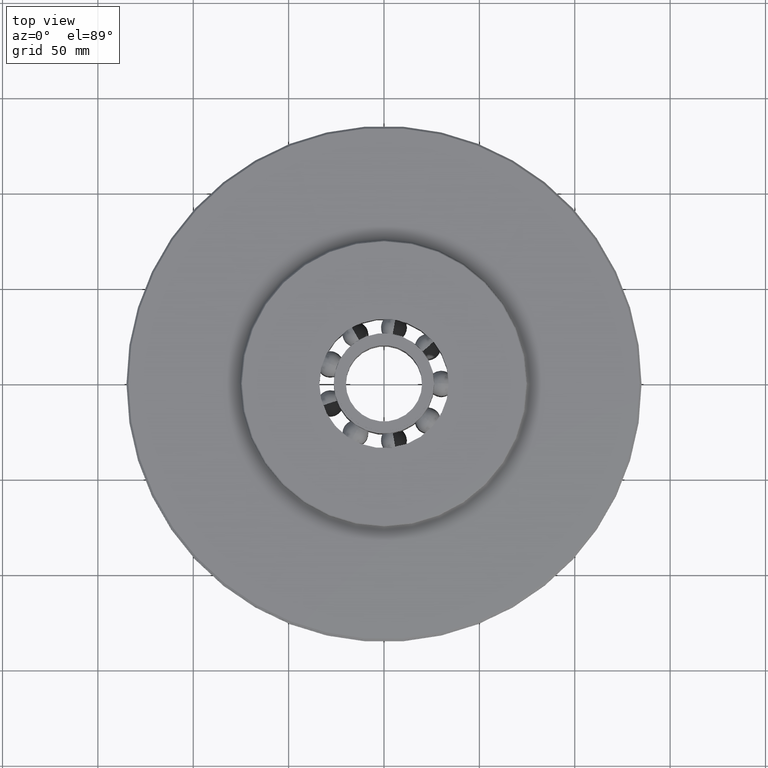
[diagram: clean part render]
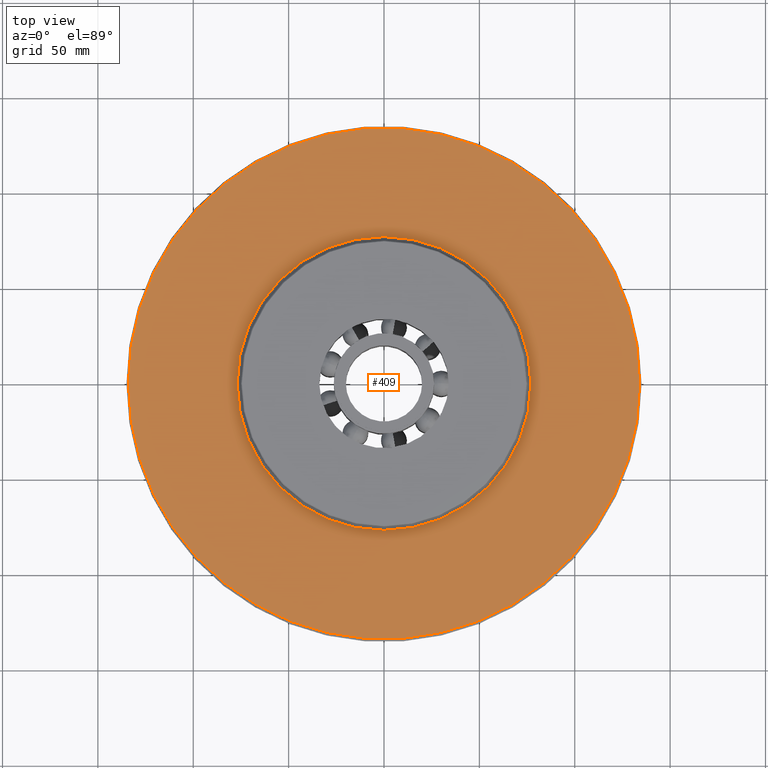
[diagram: same view with one face highlighted and labeled with its STEP entity id]
A machine part, top view. The second image highlights one B-rep face of the part: STEP entity #409.
In plain terms, the highlighted planar face has unit normal (0, 0, 1).
Its self-contained STEP definition (entity closure, byte-faithful):
#409=ADVANCED_FACE('',(#850,#851),#852,.T.);
#850=FACE_BOUND('',#1300,.T.);
#851=FACE_OUTER_BOUND('',#1301,.T.);
#852=PLANE('',#1302);
#1300=EDGE_LOOP('',(#2695,#2696));
#1301=EDGE_LOOP('',(#2697,#2698));
#1302=AXIS2_PLACEMENT_3D('',#2699,#2700,#2701);
#2695=ORIENTED_EDGE('',*,*,#3386,.F.);
#2696=ORIENTED_EDGE('',*,*,#2967,.F.);
#2697=ORIENTED_EDGE('',*,*,#2974,.T.);
#2698=ORIENTED_EDGE('',*,*,#3384,.T.);
#2699=CARTESIAN_POINT('',(105.5,0.0,16.5));
#2700=DIRECTION('',(0.0,0.0,1.0));
#2701=DIRECTION('',(1.0,0.0,0.0));
#2967=EDGE_CURVE('',#3665,#3667,#3668,.T.);
#2974=EDGE_CURVE('',#3673,#3677,#3679,.T.);
#3384=EDGE_CURVE('',#3677,#3673,#4289,.T.);
#3386=EDGE_CURVE('',#3667,#3665,#4291,.T.);
#3665=VERTEX_POINT('',#6098);
#3667=VERTEX_POINT('',#6100);
#3668=CIRCLE('',#6101,77.0);
#3673=VERTEX_POINT('',#6106);
#3677=VERTEX_POINT('',#6111);
#3679=CIRCLE('',#6114,134.0);
#4289=CIRCLE('',#10404,134.0);
#4291=CIRCLE('',#10406,77.0);
#6098=CARTESIAN_POINT('',(-77.0,9.42978035343462E-015,16.5));
#6100=CARTESIAN_POINT('',(77.0,0.0,16.5));
#6101=AXIS2_PLACEMENT_3D('',#10647,#10648,#10649);
#6106=CARTESIAN_POINT('',(134.0,0.0,16.5));
#6111=CARTESIAN_POINT('',(-134.0,1.64102671085745E-014,16.5));
#6114=AXIS2_PLACEMENT_3D('',#10661,#10662,#10663);
#10404=AXIS2_PLACEMENT_3D('',#11086,#11087,#11088);
#10406=AXIS2_PLACEMENT_3D('',#11089,#11090,#11091);
#10647=CARTESIAN_POINT('',(0.0,0.0,16.5));
#10648=DIRECTION('',(0.0,0.0,1.0));
#10649=DIRECTION('',(1.0,0.0,0.0));
#10661=CARTESIAN_POINT('',(0.0,0.0,16.5));
#10662=DIRECTION('',(0.0,0.0,1.0));
#10663=DIRECTION('',(1.0,0.0,0.0));
#11086=CARTESIAN_POINT('',(0.0,0.0,16.5));
#11087=DIRECTION('',(0.0,0.0,1.0));
#11088=DIRECTION('',(1.0,0.0,0.0));
#11089=CARTESIAN_POINT('',(0.0,0.0,16.5));
#11090=DIRECTION('',(0.0,0.0,1.0));
#11091=DIRECTION('',(1.0,0.0,0.0));